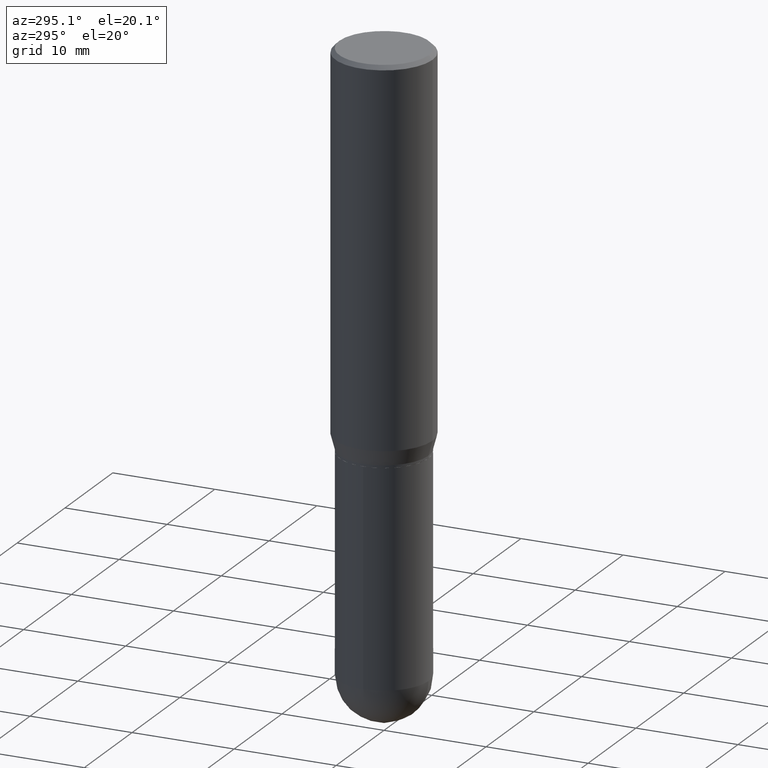
[diagram: clean part render]
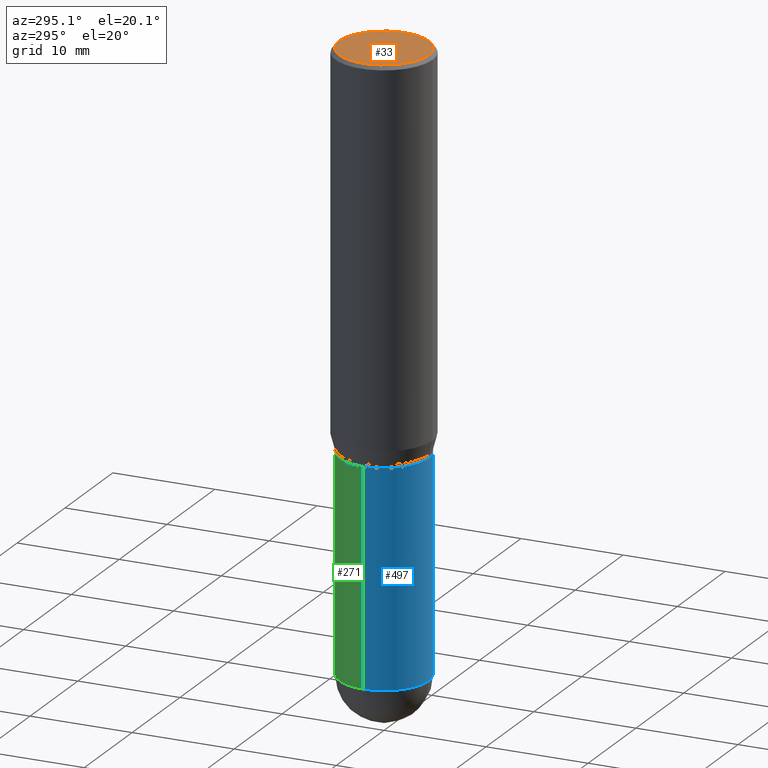
[diagram: same view with three faces highlighted in distinct colors, each labeled with its STEP entity id]
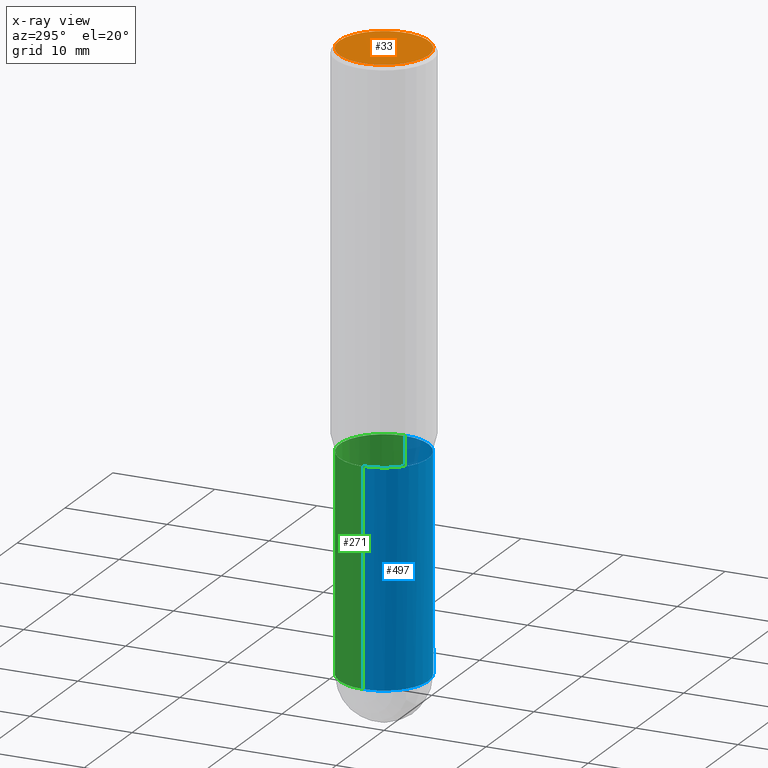
[diagram: x-ray of the same camera — body ghosted, the three highlighted faces saturated]
A machine part, auxiliary view with three faces highlighted in distinct colors.
The next image is the same camera in x-ray (body ghosted, the three faces saturated) — at least one of them is partly hidden behind the body in this view.
Their STEP definitions:

[orange] entity #33 — the highlighted planar face has unit normal (0, -0, -1).
#19 = EDGE_LOOP ( 'NONE', ( #500, #196 ) ) ;
#33 = ADVANCED_FACE ( 'NONE', ( #169 ), #511, .F. ) ;
#64 = EDGE_CURVE ( 'NONE', #149, #459, #476, .T. ) ;
#149 = VERTEX_POINT ( 'NONE', #334 ) ;
#165 = CARTESIAN_POINT ( 'NONE',  ( 1.204561061900881047E-15, 0.1725000000000000144, -5.978724494156464949E-16 ) ) ;
#169 = FACE_OUTER_BOUND ( 'NONE', #19, .T. ) ;
#196 = ORIENTED_EDGE ( 'NONE', *, *, #64, .T. ) ;
#208 = DIRECTION ( 'NONE',  ( -2.445106867821650572E-29, 3.491999655179909992E-15, 1.000000000000000000 ) ) ;
#256 = CARTESIAN_POINT ( 'NONE',  ( -2.199369276727651250E-46, 3.141047476091932851E-32, 8.994982205776030959E-18 ) ) ;
#266 = AXIS2_PLACEMENT_3D ( 'NONE', #256, #208, #449 ) ;
#277 = DIRECTION ( 'NONE',  ( 2.445106867821650011E-29, -3.491999655179910386E-15, -1.000000000000000000 ) ) ;
#312 = EDGE_CURVE ( 'NONE', #459, #149, #410, .T. ) ;
#334 = CARTESIAN_POINT ( 'NONE',  ( -1.234889639598875176E-15, -0.1725000000000000144, 6.113649227243105668E-16 ) ) ;
#339 = DIRECTION ( 'NONE',  ( -2.445106867821650572E-29, 3.491999655179909992E-15, 1.000000000000000000 ) ) ;
#384 = DIRECTION ( 'NONE',  ( -6.982962677686266711E-15, -1.000000000000000000, 3.491999655179909992E-15 ) ) ;
#385 = AXIS2_PLACEMENT_3D ( 'NONE', #442, #339, #384 ) ;
#396 = DIRECTION ( 'NONE',  ( 6.982962677686265922E-15, 1.000000000000000000, -3.491999655179910386E-15 ) ) ;
#410 = CIRCLE ( 'NONE', #266, 0.1725000000000000144 ) ;
#429 = AXIS2_PLACEMENT_3D ( 'NONE', #165, #277, #396 ) ;
#442 = CARTESIAN_POINT ( 'NONE',  ( -2.199369276727651250E-46, 3.141047476091932851E-32, 8.994982205776030959E-18 ) ) ;
#449 = DIRECTION ( 'NONE',  ( -6.982962677686266711E-15, -1.000000000000000000, 3.491999655179909992E-15 ) ) ;
#459 = VERTEX_POINT ( 'NONE', #475 ) ;
#475 = CARTESIAN_POINT ( 'NONE',  ( 1.256933281983528323E-15, 0.1725000000000000144, -5.933749583127584710E-16 ) ) ;
#476 = CIRCLE ( 'NONE', #385, 0.1725000000000000144 ) ;
#500 = ORIENTED_EDGE ( 'NONE', *, *, #312, .T. ) ;
#511 = PLANE ( 'NONE',  #429 ) ;

[blue] entity #497 — the highlighted cylindrical surface (partial cylindrical patch) has radius 4.3663 mm, axis along (-0, 0, 1).
#1 = DIRECTION ( 'NONE',  ( -2.445468806185136597E-29, 3.491481338843145583E-15, 1.000000000000000000 ) ) ;
#22 = DIRECTION ( 'NONE',  ( -2.445468806185136597E-29, 3.491481338843145583E-15, 1.000000000000000000 ) ) ;
#28 = LINE ( 'NONE', #190, #353 ) ;
#32 = DIRECTION ( 'NONE',  ( -2.445468806185136877E-29, 3.491481338843145188E-15, 1.000000000000000000 ) ) ;
#41 = FACE_OUTER_BOUND ( 'NONE', #493, .T. ) ;
#44 = AXIS2_PLACEMENT_3D ( 'NONE', #210, #22, #185 ) ;
#52 = CARTESIAN_POINT ( 'NONE',  ( -0.1719000000000000250, 1.221422962771612397E-15, -8.455649420148184581E-30 ) ) ;
#69 = CARTESIAN_POINT ( 'NONE',  ( 0.1718999999999999695, -6.437593292558987418E-15, -1.500000000000000222 ) ) ;
#79 = CARTESIAN_POINT ( 'NONE',  ( 3.668203209277704895E-29, -5.237222008264718177E-15, -1.500000000000000222 ) ) ;
#98 = DIRECTION ( 'NONE',  ( -2.445468806185136877E-29, 3.491481338843145188E-15, 1.000000000000000000 ) ) ;
#101 = DIRECTION ( 'NONE',  ( -2.445468806185136597E-29, 3.491481338843145583E-15, 1.000000000000000000 ) ) ;
#105 = ORIENTED_EDGE ( 'NONE', *, *, #161, .T. ) ;
#115 = AXIS2_PLACEMENT_3D ( 'NONE', #79, #1, #509 ) ;
#119 = CIRCLE ( 'NONE', #44, 0.1719000000000000250 ) ;
#136 = VERTEX_POINT ( 'NONE', #494 ) ;
#161 = EDGE_CURVE ( 'NONE', #507, #136, #119, .T. ) ;
#185 = DIRECTION ( 'NONE',  ( 1.000000000000000000, -6.982962677686271444E-15, 0.000000000000000000 ) ) ;
#190 = CARTESIAN_POINT ( 'NONE',  ( 0.1719000000000000250, -1.200371284294269241E-15, 8.382147877593214480E-30 ) ) ;
#199 = CYLINDRICAL_SURFACE ( 'NONE', #330, 0.1719000000000000250 ) ;
#200 = EDGE_CURVE ( 'NONE', #136, #431, #28, .T. ) ;
#202 = VECTOR ( 'NONE', #98, 39.37007874015748143 ) ;
#205 = ORIENTED_EDGE ( 'NONE', *, *, #425, .T. ) ;
#210 = CARTESIAN_POINT ( 'NONE',  ( 5.693295927679617284E-29, -8.128517704960729139E-15, -2.328100000000000058 ) ) ;
#215 = LINE ( 'NONE', #52, #202 ) ;
#230 = CARTESIAN_POINT ( 'NONE',  ( -0.1719000000000000250, -5.461446893841112247E-15, -2.328100000000000058 ) ) ;
#239 = EDGE_CURVE ( 'NONE', #398, #457, #215, .T. ) ;
#241 = CIRCLE ( 'NONE', #115, 0.1718999999999999695 ) ;
#264 = ORIENTED_EDGE ( 'NONE', *, *, #510, .F. ) ;
#270 = ORIENTED_EDGE ( 'NONE', *, *, #239, .F. ) ;
#276 = CARTESIAN_POINT ( 'NONE',  ( -1.221422962771555008E-15, -0.1719000000000081296, -2.328099999999999614 ) ) ;
#309 = CARTESIAN_POINT ( 'NONE',  ( 0.000000000000000000, 0.000000000000000000, 0.000000000000000000 ) ) ;
#330 = AXIS2_PLACEMENT_3D ( 'NONE', #309, #397, #439 ) ;
#342 = CIRCLE ( 'NONE', #430, 0.1719000000000000250 ) ;
#350 = ORIENTED_EDGE ( 'NONE', *, *, #200, .T. ) ;
#353 = VECTOR ( 'NONE', #32, 39.37007874015748143 ) ;
#360 = CARTESIAN_POINT ( 'NONE',  ( -0.1718999999999999695, -5.461446893841111458E-15, -1.500000000000000222 ) ) ;
#397 = DIRECTION ( 'NONE',  ( -2.445468806185136597E-29, 3.491481338843145583E-15, 1.000000000000000000 ) ) ;
#398 = VERTEX_POINT ( 'NONE', #230 ) ;
#413 = DIRECTION ( 'NONE',  ( 1.000000000000000000, -6.982962677686271444E-15, 0.000000000000000000 ) ) ;
#425 = EDGE_CURVE ( 'NONE', #398, #507, #342, .T. ) ;
#430 = AXIS2_PLACEMENT_3D ( 'NONE', #496, #101, #413 ) ;
#431 = VERTEX_POINT ( 'NONE', #69 ) ;
#439 = DIRECTION ( 'NONE',  ( 1.000000000000000000, -6.982962677686265922E-15, 4.876176775795935793E-29 ) ) ;
#457 = VERTEX_POINT ( 'NONE', #360 ) ;
#493 = EDGE_LOOP ( 'NONE', ( #270, #205, #105, #350, #264 ) ) ;
#494 = CARTESIAN_POINT ( 'NONE',  ( 0.1719000000000000250, -7.883241140906993293E-15, -2.328100000000000058 ) ) ;
#496 = CARTESIAN_POINT ( 'NONE',  ( 5.693295927679617284E-29, -8.128517704960729139E-15, -2.328100000000000058 ) ) ;
#497 = ADVANCED_FACE ( 'NONE', ( #41 ), #199, .T. ) ;
#507 = VERTEX_POINT ( 'NONE', #276 ) ;
#509 = DIRECTION ( 'NONE',  ( 1.000000000000000000, -6.982962677686268288E-15, 0.000000000000000000 ) ) ;
#510 = EDGE_CURVE ( 'NONE', #457, #431, #241, .T. ) ;

[green] entity #271 — the highlighted cylindrical surface (partial cylindrical patch) has radius 4.3663 mm, axis along (-0, 0, 1).
#8 = DIRECTION ( 'NONE',  ( 1.000000000000000000, -6.982962677686268288E-15, 0.000000000000000000 ) ) ;
#10 = DIRECTION ( 'NONE',  ( 1.000000000000000000, -6.982962677686265922E-15, 4.876176775795935793E-29 ) ) ;
#12 = CIRCLE ( 'NONE', #130, 0.1719000000000000250 ) ;
#15 = EDGE_CURVE ( 'NONE', #379, #398, #186, .T. ) ;
#27 = CARTESIAN_POINT ( 'NONE',  ( 1.200371284294326039E-15, 0.1718999999999918094, -2.328100000000000946 ) ) ;
#28 = LINE ( 'NONE', #190, #353 ) ;
#32 = DIRECTION ( 'NONE',  ( -2.445468806185136877E-29, 3.491481338843145188E-15, 1.000000000000000000 ) ) ;
#52 = CARTESIAN_POINT ( 'NONE',  ( -0.1719000000000000250, 1.221422962771612397E-15, -8.455649420148184581E-30 ) ) ;
#66 = AXIS2_PLACEMENT_3D ( 'NONE', #394, #198, #508 ) ;
#69 = CARTESIAN_POINT ( 'NONE',  ( 0.1718999999999999695, -6.437593292558987418E-15, -1.500000000000000222 ) ) ;
#87 = EDGE_CURVE ( 'NONE', #431, #457, #265, .T. ) ;
#98 = DIRECTION ( 'NONE',  ( -2.445468806185136877E-29, 3.491481338843145188E-15, 1.000000000000000000 ) ) ;
#107 = ORIENTED_EDGE ( 'NONE', *, *, #239, .T. ) ;
#114 = AXIS2_PLACEMENT_3D ( 'NONE', #294, #447, #8 ) ;
#130 = AXIS2_PLACEMENT_3D ( 'NONE', #316, #163, #319 ) ;
#136 = VERTEX_POINT ( 'NONE', #494 ) ;
#163 = DIRECTION ( 'NONE',  ( -2.445468806185136597E-29, 3.491481338843145583E-15, 1.000000000000000000 ) ) ;
#172 = ORIENTED_EDGE ( 'NONE', *, *, #237, .T. ) ;
#173 = AXIS2_PLACEMENT_3D ( 'NONE', #327, #289, #10 ) ;
#186 = CIRCLE ( 'NONE', #66, 0.1719000000000000250 ) ;
#190 = CARTESIAN_POINT ( 'NONE',  ( 0.1719000000000000250, -1.200371284294269241E-15, 8.382147877593214480E-30 ) ) ;
#198 = DIRECTION ( 'NONE',  ( -2.445468806185136597E-29, 3.491481338843145583E-15, 1.000000000000000000 ) ) ;
#200 = EDGE_CURVE ( 'NONE', #136, #431, #28, .T. ) ;
#202 = VECTOR ( 'NONE', #98, 39.37007874015748143 ) ;
#209 = FACE_OUTER_BOUND ( 'NONE', #382, .T. ) ;
#215 = LINE ( 'NONE', #52, #202 ) ;
#230 = CARTESIAN_POINT ( 'NONE',  ( -0.1719000000000000250, -5.461446893841112247E-15, -2.328100000000000058 ) ) ;
#237 = EDGE_CURVE ( 'NONE', #136, #379, #12, .T. ) ;
#239 = EDGE_CURVE ( 'NONE', #398, #457, #215, .T. ) ;
#244 = CYLINDRICAL_SURFACE ( 'NONE', #173, 0.1719000000000000250 ) ;
#265 = CIRCLE ( 'NONE', #114, 0.1718999999999999695 ) ;
#271 = ADVANCED_FACE ( 'NONE', ( #209 ), #244, .T. ) ;
#289 = DIRECTION ( 'NONE',  ( -2.445468806185136597E-29, 3.491481338843145583E-15, 1.000000000000000000 ) ) ;
#294 = CARTESIAN_POINT ( 'NONE',  ( 3.668203209277704895E-29, -5.237222008264718177E-15, -1.500000000000000222 ) ) ;
#301 = ORIENTED_EDGE ( 'NONE', *, *, #15, .T. ) ;
#307 = ORIENTED_EDGE ( 'NONE', *, *, #87, .F. ) ;
#316 = CARTESIAN_POINT ( 'NONE',  ( 5.693295927679617284E-29, -8.128517704960729139E-15, -2.328100000000000058 ) ) ;
#319 = DIRECTION ( 'NONE',  ( 1.000000000000000000, -6.982962677686271444E-15, 0.000000000000000000 ) ) ;
#327 = CARTESIAN_POINT ( 'NONE',  ( 0.000000000000000000, 0.000000000000000000, 0.000000000000000000 ) ) ;
#353 = VECTOR ( 'NONE', #32, 39.37007874015748143 ) ;
#360 = CARTESIAN_POINT ( 'NONE',  ( -0.1718999999999999695, -5.461446893841111458E-15, -1.500000000000000222 ) ) ;
#379 = VERTEX_POINT ( 'NONE', #27 ) ;
#382 = EDGE_LOOP ( 'NONE', ( #301, #107, #307, #423, #172 ) ) ;
#394 = CARTESIAN_POINT ( 'NONE',  ( 5.693295927679617284E-29, -8.128517704960729139E-15, -2.328100000000000058 ) ) ;
#398 = VERTEX_POINT ( 'NONE', #230 ) ;
#423 = ORIENTED_EDGE ( 'NONE', *, *, #200, .F. ) ;
#431 = VERTEX_POINT ( 'NONE', #69 ) ;
#447 = DIRECTION ( 'NONE',  ( -2.445468806185136597E-29, 3.491481338843145583E-15, 1.000000000000000000 ) ) ;
#457 = VERTEX_POINT ( 'NONE', #360 ) ;
#494 = CARTESIAN_POINT ( 'NONE',  ( 0.1719000000000000250, -7.883241140906993293E-15, -2.328100000000000058 ) ) ;
#508 = DIRECTION ( 'NONE',  ( 1.000000000000000000, -6.982962677686271444E-15, 0.000000000000000000 ) ) ;